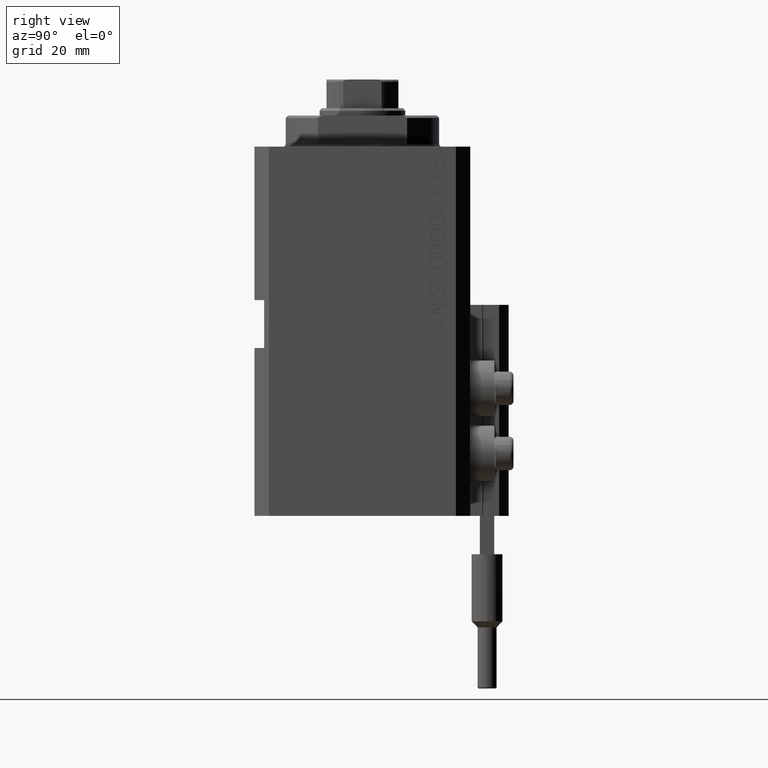
[diagram: clean part render]
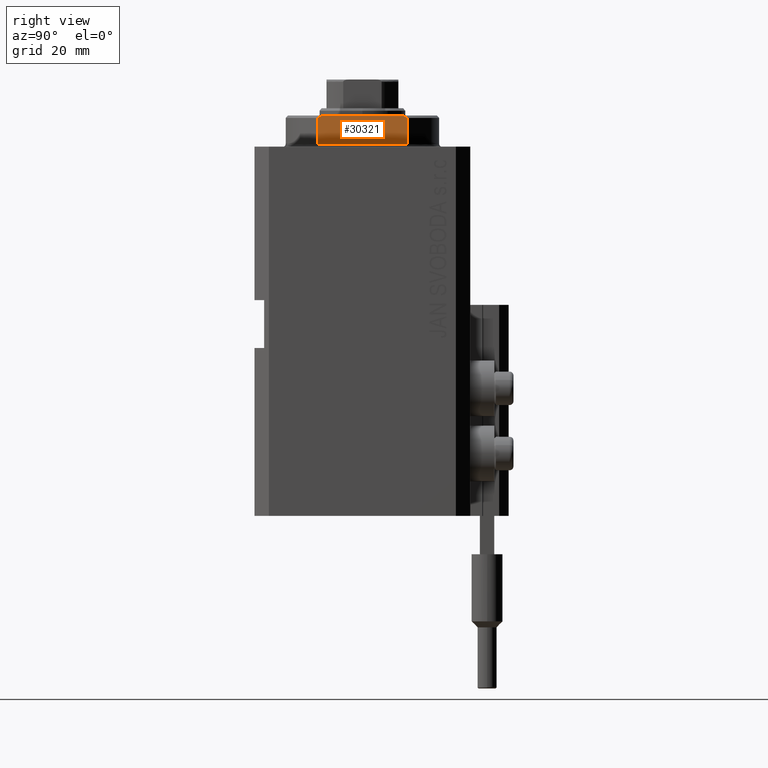
[diagram: same view with one face highlighted and labeled with its STEP entity id]
A machine part, right view. The second image highlights one B-rep face of the part: STEP entity #30321.
In plain terms, the highlighted planar face has unit normal (-1, 0, 0).
Its self-contained STEP definition (entity closure, byte-faithful):
#304 = EDGE_CURVE ( 'NONE', #14202, #23126, #8169, .T. ) ;
#1353 = ORIENTED_EDGE ( 'NONE', *, *, #16666, .T. ) ;
#2504 = ORIENTED_EDGE ( 'NONE', *, *, #43434, .F. ) ;
#4686 = CARTESIAN_POINT ( 'NONE',  ( -13.00000000000000000, -43.08131845707602992, -0.4999999999999995559 ) ) ;
#4945 = CARTESIAN_POINT ( 'NONE',  ( -13.00000000000000000, 9.327379053088916905, -6.000000000000014211 ) ) ;
#5019 = ORIENTED_EDGE ( 'NONE', *, *, #14989, .T. ) ;
#5283 = ORIENTED_EDGE ( 'NONE', *, *, #24018, .F. ) ;
#5703 = CARTESIAN_POINT ( 'NONE',  ( -13.00000000000000000, 9.327379053088815652, -0.4999999999999995559 ) ) ;
#8150 = ORIENTED_EDGE ( 'NONE', *, *, #46794, .F. ) ;
#8169 = B_SPLINE_CURVE_WITH_KNOTS ( 'NONE', 3,
 ( #4945, #20191, #19715, #23612 ),
 .UNSPECIFIED., .F., .F.,
 ( 4, 4 ),
 ( 0.03031084603841392722, 0.03132841702658674399 ),
 .UNSPECIFIED. ) ;
#9101 = VERTEX_POINT ( 'NONE', #22782 ) ;
#11253 = VERTEX_POINT ( 'NONE', #27356 ) ;
#12680 = PLANE ( 'NONE',  #19667 ) ;
#12949 = CARTESIAN_POINT ( 'NONE',  ( -13.00000000000000000, 9.327379053088813876, -6.500000000000000000 ) ) ;
#13031 = CARTESIAN_POINT ( 'NONE',  ( -13.00000000000000000, -9.327379053088815652, -6.000000000000023981 ) ) ;
#13466 = CARTESIAN_POINT ( 'NONE',  ( -13.00000000000000000, 8.440971508067139695, -6.500000000000000000 ) ) ;
#13896 = VECTOR ( 'NONE', #29404, 1000.000000000000000 ) ;
#14202 = VERTEX_POINT ( 'NONE', #45699 ) ;
#14989 = EDGE_CURVE ( 'NONE', #11253, #30492, #40353, .T. ) ;
#16666 = EDGE_CURVE ( 'NONE', #23126, #11253, #18230, .T. ) ;
#18230 = LINE ( 'NONE', #39869, #13896 ) ;
#19352 = VECTOR ( 'NONE', #24826, 1000.000000000000000 ) ;
#19667 = AXIS2_PLACEMENT_3D ( 'NONE', #4686, #27001, #27713 ) ;
#19715 = CARTESIAN_POINT ( 'NONE',  ( -13.00000000000000000, 8.738667591047022398, -6.337881022290549282 ) ) ;
#19942 = FACE_OUTER_BOUND ( 'NONE', #45833, .T. ) ;
#20191 = CARTESIAN_POINT ( 'NONE',  ( -13.00000000000000000, 9.034035639617135516, -6.171007825636148247 ) ) ;
#20633 = LINE ( 'NONE', #24521, #47126 ) ;
#21026 = CARTESIAN_POINT ( 'NONE',  ( -13.00000000000000000, -9.034292940839598884, -6.170857829009066542 ) ) ;
#22483 = DIRECTION ( 'NONE',  ( -0.000000000000000000, -1.000000000000000000, -0.000000000000000000 ) ) ;
#22782 = CARTESIAN_POINT ( 'NONE',  ( -13.00000000000000000, -9.327379053088815652, -0.4999999999999995559 ) ) ;
#23126 = VERTEX_POINT ( 'NONE', #13466 ) ;
#23451 = LINE ( 'NONE', #38031, #45837 ) ;
#23612 = CARTESIAN_POINT ( 'NONE',  ( -13.00000000000000000, 8.440971508067139695, -6.500000000000000000 ) ) ;
#24018 = EDGE_CURVE ( 'NONE', #30069, #9101, #23451, .T. ) ;
#24348 = LINE ( 'NONE', #12949, #19352 ) ;
#24521 = CARTESIAN_POINT ( 'NONE',  ( -13.00000000000000000, -9.327379053088813876, -6.500000000000000000 ) ) ;
#24826 = DIRECTION ( 'NONE',  ( -0.000000000000000000, -0.000000000000000000, 1.000000000000000000 ) ) ;
#27001 = DIRECTION ( 'NONE',  ( 1.000000000000000000, 0.000000000000000000, 0.000000000000000000 ) ) ;
#27356 = CARTESIAN_POINT ( 'NONE',  ( -13.00000000000000000, -8.440971508067139695, -6.500000000000000000 ) ) ;
#27606 = CARTESIAN_POINT ( 'NONE',  ( -13.00000000000000000, -8.440971508067139695, -6.500000000000000000 ) ) ;
#27713 = DIRECTION ( 'NONE',  ( 0.000000000000000000, 0.000000000000000000, -1.000000000000000000 ) ) ;
#29330 = ORIENTED_EDGE ( 'NONE', *, *, #304, .T. ) ;
#29404 = DIRECTION ( 'NONE',  ( -0.000000000000000000, -1.000000000000000000, -0.000000000000000000 ) ) ;
#30069 = VERTEX_POINT ( 'NONE', #5703 ) ;
#30321 = ADVANCED_FACE ( 'NONE', ( #19942 ), #12680, .F. ) ;
#30492 = VERTEX_POINT ( 'NONE', #35972 ) ;
#31502 = CARTESIAN_POINT ( 'NONE',  ( -13.00000000000000000, -8.738941625005658409, -6.337731789204286592 ) ) ;
#35972 = CARTESIAN_POINT ( 'NONE',  ( -13.00000000000000000, -9.327379053088815652, -6.000000000000023981 ) ) ;
#38031 = CARTESIAN_POINT ( 'NONE',  ( -13.00000000000000000, -43.08131845707602992, -0.4999999999999995559 ) ) ;
#39345 = DIRECTION ( 'NONE',  ( 0.000000000000000000, 0.000000000000000000, -1.000000000000000000 ) ) ;
#39869 = CARTESIAN_POINT ( 'NONE',  ( -13.00000000000000000, -43.08131845707602992, -6.500000000000000000 ) ) ;
#40353 = B_SPLINE_CURVE_WITH_KNOTS ( 'NONE', 3,
 ( #27606, #31502, #21026, #13031 ),
 .UNSPECIFIED., .F., .F.,
 ( 4, 4 ),
 ( 0.04915043732154475431, 0.05017913261572017058 ),
 .UNSPECIFIED. ) ;
#43434 = EDGE_CURVE ( 'NONE', #9101, #30492, #20633, .T. ) ;
#45699 = CARTESIAN_POINT ( 'NONE',  ( -13.00000000000000000, 9.327379053088916905, -6.000000000000014211 ) ) ;
#45833 = EDGE_LOOP ( 'NONE', ( #29330, #1353, #5019, #2504, #5283, #8150 ) ) ;
#45837 = VECTOR ( 'NONE', #22483, 1000.000000000000000 ) ;
#46794 = EDGE_CURVE ( 'NONE', #14202, #30069, #24348, .T. ) ;
#47126 = VECTOR ( 'NONE', #39345, 1000.000000000000000 ) ;